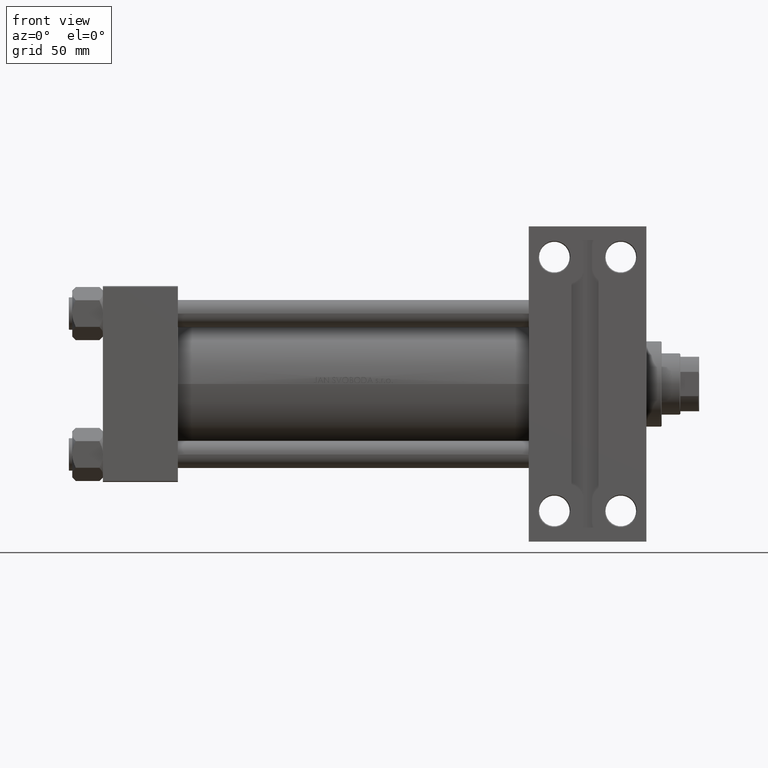
[diagram: clean part render]
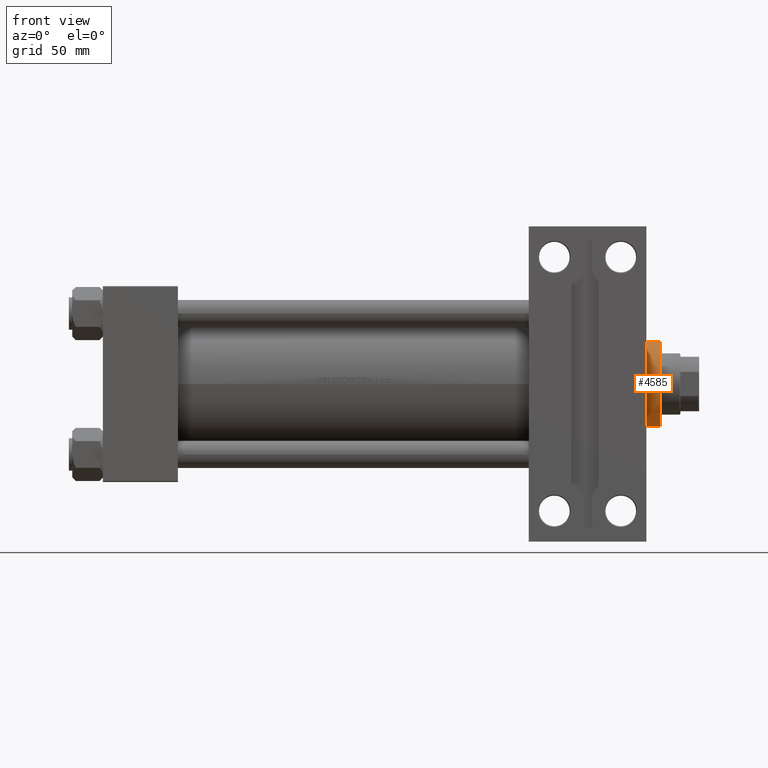
[diagram: same view with one face highlighted and labeled with its STEP entity id]
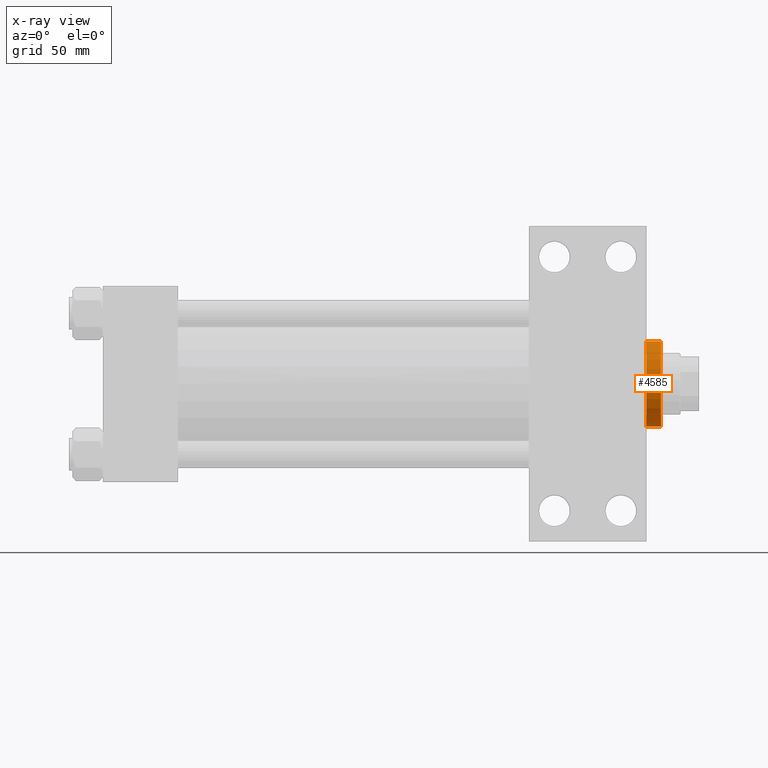
[diagram: x-ray of the same camera — body ghosted, the highlighted face saturated]
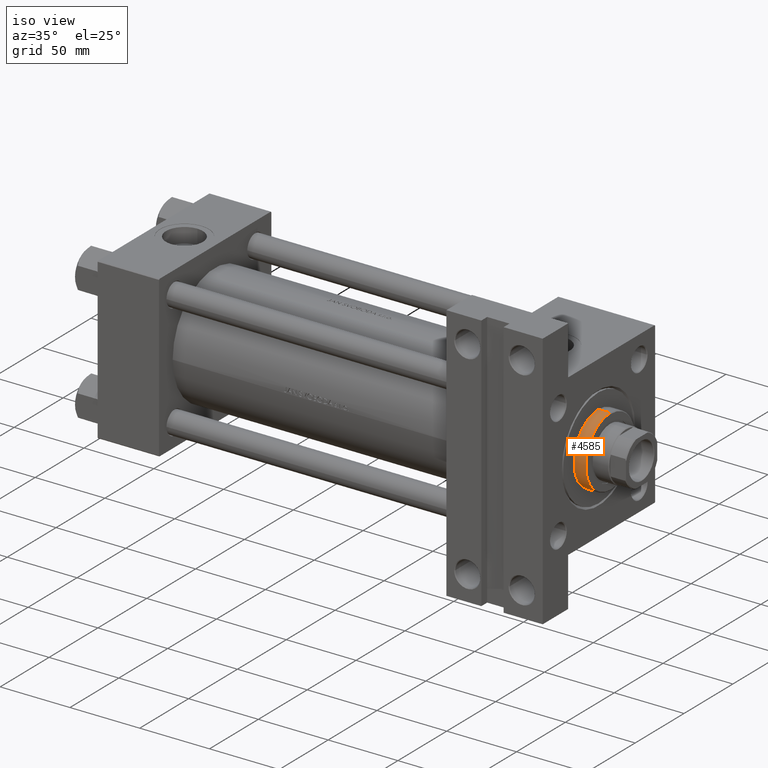
[diagram: same view with one face highlighted and labeled with its STEP entity id]
A machine part, front view. The second image highlights one B-rep face of the part: STEP entity #4585.
The next image is the same camera in x-ray: the body ghosted, the highlighted face saturated — about 0% of this face is hidden behind the body in this view.
A second angle (iso view) of the same face is appended — the face is thin or edge-on in the first view.
In plain terms, the highlighted cylindrical surface (partial cylindrical patch) has radius 25 mm, axis along (-1, 0, 0).
Its self-contained STEP definition (entity closure, byte-faithful):
#222 = ORIENTED_EDGE ( 'NONE', *, *, #24385, .T. ) ;
#498 = FACE_OUTER_BOUND ( 'NONE', #5297, .T. ) ;
#2695 = ORIENTED_EDGE ( 'NONE', *, *, #43380, .T. ) ;
#3902 = DIRECTION ( 'NONE',  ( -0.000000000000000000, -0.000000000000000000, -1.000000000000000000 ) ) ;
#4585 = ADVANCED_FACE ( 'NONE', ( #498 ), #18520, .T. ) ;
#5297 = EDGE_LOOP ( 'NONE', ( #40029, #222, #2695, #31702 ) ) ;
#6032 = CARTESIAN_POINT ( 'NONE',  ( 25.00000000000000000, 3.061616997868383043E-15, 37.69999999999999574 ) ) ;
#7142 = DIRECTION ( 'NONE',  ( 0.000000000000000000, 0.000000000000000000, -1.000000000000000000 ) ) ;
#7377 = CIRCLE ( 'NONE', #32246, 25.00000000000000000 ) ;
#8714 = CIRCLE ( 'NONE', #35119, 25.00000000000000000 ) ;
#9016 = EDGE_CURVE ( 'NONE', #38900, #19917, #8714, .T. ) ;
#9217 = DIRECTION ( 'NONE',  ( -0.000000000000000000, -0.000000000000000000, -1.000000000000000000 ) ) ;
#11431 = VECTOR ( 'NONE', #9217, 1000.000000000000000 ) ;
#12302 = VECTOR ( 'NONE', #47898, 1000.000000000000000 ) ;
#18050 = VERTEX_POINT ( 'NONE', #30990 ) ;
#18520 = CYLINDRICAL_SURFACE ( 'NONE', #33409, 25.00000000000000000 ) ;
#18769 = CARTESIAN_POINT ( 'NONE',  ( 0.000000000000000000, 0.000000000000000000, 28.69999999999999929 ) ) ;
#19917 = VERTEX_POINT ( 'NONE', #32037 ) ;
#20870 = LINE ( 'NONE', #6032, #11431 ) ;
#21986 = DIRECTION ( 'NONE',  ( 1.000000000000000000, 0.000000000000000000, 0.000000000000000000 ) ) ;
#23434 = EDGE_CURVE ( 'NONE', #38900, #18050, #40352, .T. ) ;
#23660 = CARTESIAN_POINT ( 'NONE',  ( 25.00000000000000000, 3.061616997868383043E-15, 28.69999999999999929 ) ) ;
#24385 = EDGE_CURVE ( 'NONE', #19917, #41090, #20870, .T. ) ;
#30990 = CARTESIAN_POINT ( 'NONE',  ( -25.00000000000000000, 0.000000000000000000, 28.69999999999999929 ) ) ;
#31702 = ORIENTED_EDGE ( 'NONE', *, *, #23434, .F. ) ;
#32037 = CARTESIAN_POINT ( 'NONE',  ( 25.00000000000000000, 3.061616997868383043E-15, 37.19999999999999574 ) ) ;
#32246 = AXIS2_PLACEMENT_3D ( 'NONE', #18769, #47738, #44787 ) ;
#32824 = CARTESIAN_POINT ( 'NONE',  ( -25.00000000000000000, 0.000000000000000000, 37.69999999999999574 ) ) ;
#33409 = AXIS2_PLACEMENT_3D ( 'NONE', #45012, #3902, #44775 ) ;
#33595 = CARTESIAN_POINT ( 'NONE',  ( -25.00000000000000000, 0.000000000000000000, 37.19999999999999574 ) ) ;
#33650 = CARTESIAN_POINT ( 'NONE',  ( 0.000000000000000000, 0.000000000000000000, 37.19999999999999574 ) ) ;
#35119 = AXIS2_PLACEMENT_3D ( 'NONE', #33650, #7142, #21986 ) ;
#38900 = VERTEX_POINT ( 'NONE', #33595 ) ;
#40029 = ORIENTED_EDGE ( 'NONE', *, *, #9016, .T. ) ;
#40352 = LINE ( 'NONE', #32824, #12302 ) ;
#41090 = VERTEX_POINT ( 'NONE', #23660 ) ;
#43380 = EDGE_CURVE ( 'NONE', #41090, #18050, #7377, .T. ) ;
#44775 = DIRECTION ( 'NONE',  ( -1.000000000000000000, 0.000000000000000000, 0.000000000000000000 ) ) ;
#44787 = DIRECTION ( 'NONE',  ( 1.000000000000000000, 0.000000000000000000, 0.000000000000000000 ) ) ;
#45012 = CARTESIAN_POINT ( 'NONE',  ( 0.000000000000000000, 0.000000000000000000, 37.69999999999999574 ) ) ;
#47738 = DIRECTION ( 'NONE',  ( 0.000000000000000000, 0.000000000000000000, 1.000000000000000000 ) ) ;
#47898 = DIRECTION ( 'NONE',  ( -0.000000000000000000, -0.000000000000000000, -1.000000000000000000 ) ) ;